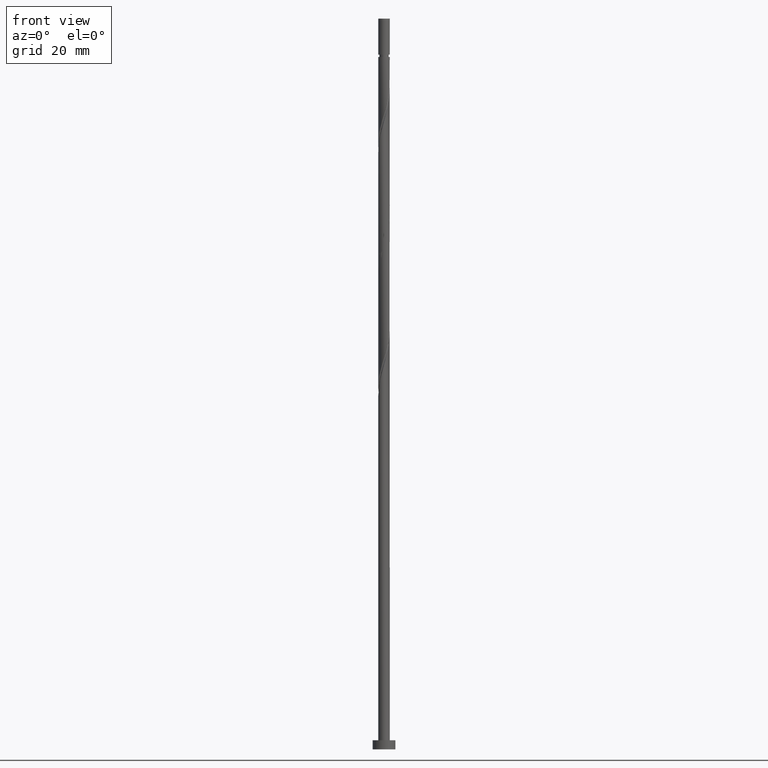
[diagram: clean part render]
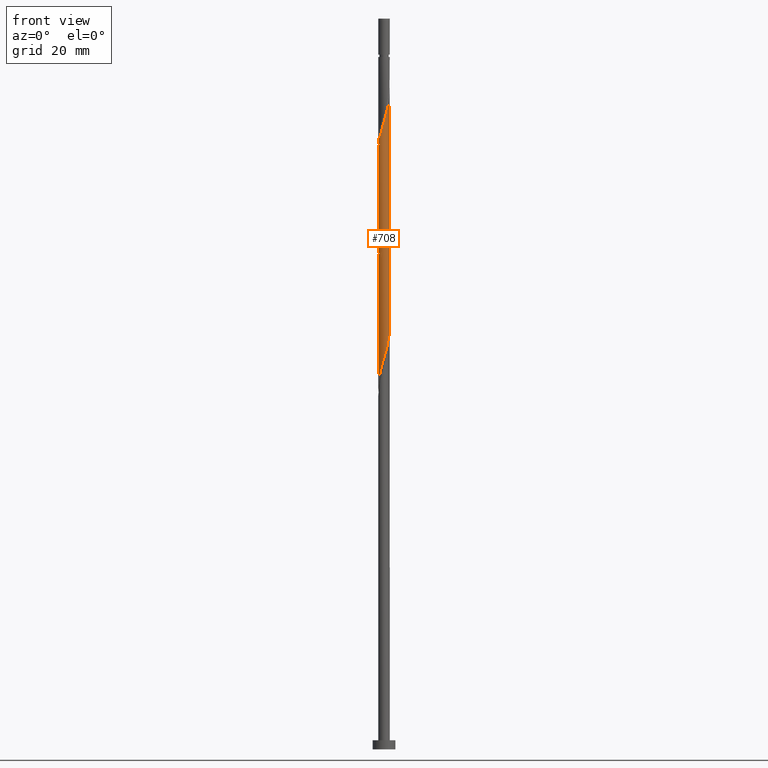
[diagram: same view with one face highlighted and labeled with its STEP entity id]
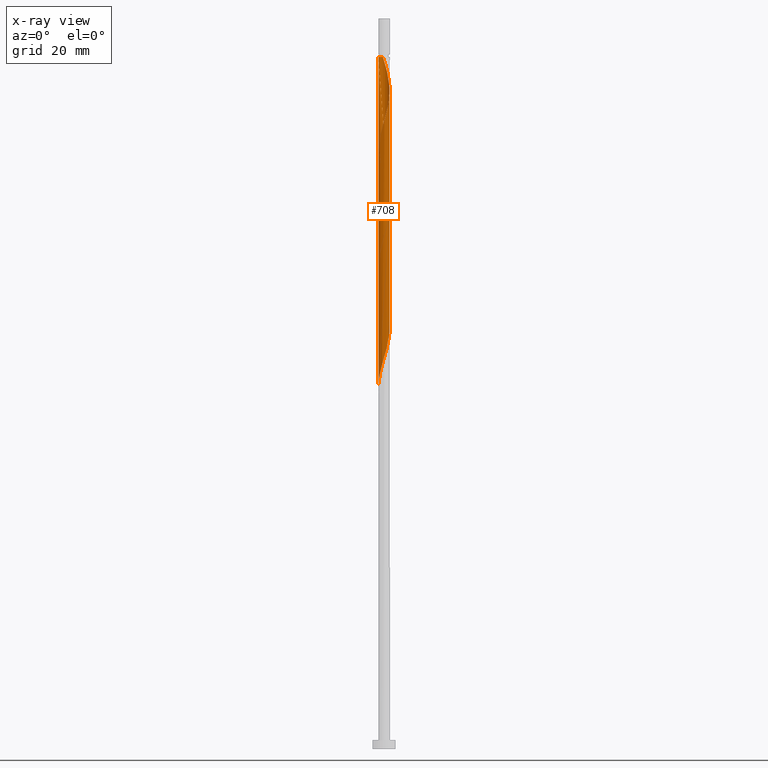
[diagram: x-ray of the same camera — body ghosted, the highlighted face saturated]
A machine part, front view. The second image highlights one B-rep face of the part: STEP entity #708.
The next image is the same camera in x-ray: the body ghosted, the highlighted face saturated — about 0% of this face is hidden behind the body in this view.
In plain terms, the highlighted cylindrical surface (bore or boss wall) has radius 1.25 mm, axis along (-0, -0, -1).
Its self-contained STEP definition (entity closure, byte-faithful):
#15 = CARTESIAN_POINT ( 'NONE',  ( -0.6205301684468541579, 1.099883002481392591, 101.3084888418696607 ) ) ;
#22 = CARTESIAN_POINT ( 'NONE',  ( -1.088687779416461110, -0.6142140660626828064, 107.9751555085362753 ) ) ;
#31 = CARTESIAN_POINT ( 'NONE',  ( -1.177130897255197484, 0.4205506517973472413, 104.3387918721726209 ) ) ;
#32 = CARTESIAN_POINT ( 'NONE',  ( -0.4530258272359607985, -1.165018283057042359, 135.8539433873241933 ) ) ;
#44 = CARTESIAN_POINT ( 'NONE',  ( 0.6205301684468541579, -1.099883002481392813, 87.97515550853628952 ) ) ;
#45 = CARTESIAN_POINT ( 'NONE',  ( -0.2487468592766935160, 1.225000000000378453, 151.6115191448999155 ) ) ;
#47 = VECTOR ( 'NONE', #468, 1000.000000000000000 ) ;
#53 = VERTEX_POINT ( 'NONE', #910 ) ;
#55 = CARTESIAN_POINT ( 'NONE',  ( 0.7427112222102564276, -1.021362007078349787, 140.0963676297483858 ) ) ;
#66 = CARTESIAN_POINT ( 'NONE',  ( 0.07261844913281340075, -1.260764399063406538, 137.6721252055059495 ) ) ;
#73 = DIRECTION ( 'NONE',  ( -0.000000000000000000, -0.000000000000000000, -1.000000000000000000 ) ) ;
#77 = CARTESIAN_POINT ( 'NONE',  ( 0.8715441755302542060, 0.8960528723793531602, 122.5206100539908078 ) ) ;
#132 = VERTEX_POINT ( 'NONE', #449 ) ;
#133 = CARTESIAN_POINT ( 'NONE',  ( 1.177130897255197484, -0.4205506517973472969, 117.6721252055059779 ) ) ;
#138 = CARTESIAN_POINT ( 'NONE',  ( 0.4530258272359594662, -1.165018283057040582, 114.0357615691423376 ) ) ;
#139 = EDGE_CURVE ( 'NONE', #150, #53, #740, .T. ) ;
#150 = VERTEX_POINT ( 'NONE', #915 ) ;
#151 = CARTESIAN_POINT ( 'NONE',  ( 0.7427112222102555394, 1.021362007078348677, 96.46000399338478815 ) ) ;
#152 = CARTESIAN_POINT ( 'NONE',  ( 1.217632374089876901, -0.2826152889853174033, 143.1266706600514453 ) ) ;
#169 = CARTESIAN_POINT ( 'NONE',  ( 1.177130897255197484, -0.4205506517973472969, 91.00545853883930647 ) ) ;
#170 = CARTESIAN_POINT ( 'NONE',  ( -1.116664842001303004, -0.5897965240134723786, 132.8236403570211337 ) ) ;
#185 = CARTESIAN_POINT ( 'NONE',  ( 1.258266318197080347, 0.1075461835256248805, 92.82364035702116212 ) ) ;
#200 = CARTESIAN_POINT ( 'NONE',  ( -0.1064515184461258396, 1.245458981348045668, 126.1569736903544765 ) ) ;
#202 = EDGE_CURVE ( 'NONE', #605, #1337, #1392, .T. ) ;
#216 = LINE ( 'NONE', #597, #47 ) ;
#222 = CARTESIAN_POINT ( 'NONE',  ( -1.250000000000000000, -1.634032661856966110E-15, 79.12764029086747541 ) ) ;
#223 = ORIENTED_EDGE ( 'NONE', *, *, #139, .T. ) ;
#230 = CARTESIAN_POINT ( 'NONE',  ( 1.116664842001301006, -0.5897965240134720455, 117.0660645994454399 ) ) ;
#234 = CARTESIAN_POINT ( 'NONE',  ( -1.250000000000000000, 0.000000000000000000, 160.0000000000000000 ) ) ;
#244 = CARTESIAN_POINT ( 'NONE',  ( -0.4248752694204982472, -1.189235600936594972, 111.0054585388393491 ) ) ;
#251 = CARTESIAN_POINT ( 'NONE',  ( 0.4248752694204984137, 1.189235600936594528, 97.67212520550602051 ) ) ;
#259 = CARTESIAN_POINT ( 'NONE',  ( 0.5837932458153768378, 1.105298804007470936, 97.06606459944536880 ) ) ;
#299 = EDGE_CURVE ( 'NONE', #863, #132, #1534, .T. ) ;
#301 = CARTESIAN_POINT ( 'NONE',  ( -0.7628986777514721318, -0.9901947321032666949, 134.6418221752029467 ) ) ;
#304 = CARTESIAN_POINT ( 'NONE',  ( -1.247931635353087598, 0.07187929802779884081, 132.2175797509605388 ) ) ;
#306 = AXIS2_PLACEMENT_3D ( 'NONE', #684, #1358, #1252 ) ;
#313 = CARTESIAN_POINT ( 'NONE',  ( 0.4248752694204984137, 1.189235600936594528, 124.3387918721726635 ) ) ;
#318 = CARTESIAN_POINT ( 'NONE',  ( -0.2487468592766560183, -1.224999999999999645, 84.94485247823325835 ) ) ;
#323 = CARTESIAN_POINT ( 'NONE',  ( 1.250000000000000222, 0.1431611592314000758, 119.6136002438387749 ) ) ;
#352 = DIRECTION ( 'NONE',  ( -0.000000000000000000, -0.000000000000000000, -1.000000000000000000 ) ) ;
#355 = CARTESIAN_POINT ( 'NONE',  ( -0.4530258272359594662, 1.165018283057040582, 100.7024282358090375 ) ) ;
#369 = CARTESIAN_POINT ( 'NONE',  ( 0.2855214860250654962, -1.230153563632688352, 113.4297009630817854 ) ) ;
#377 = CARTESIAN_POINT ( 'NONE',  ( -0.1064515184461258396, 1.245458981348045668, 99.49030702368779089 ) ) ;
#381 =( BOUNDED_CURVE ( )  B_SPLINE_CURVE ( 2, ( #1038, #912, #304, #1272, #1380, #801, #1500, #793, #906, #1256, #1024, #679, #200, #570, #1030, #313, #1163, #1148, #77, #446, #578, #688, #1389, #323, #438 ),
 .UNSPECIFIED., .F., .T. ) 
 B_SPLINE_CURVE_WITH_KNOTS ( ( 3, 2, 2, 2, 2, 2, 2, 2, 2, 2, 2, 2, 3 ),
 ( 0.4295252162417514952, 0.4318181818181818232, 0.4431818181818181768, 0.4545454545454545303, 0.4659090909090908839, 0.4772727272727272929, 0.4886363636363636465, 0.5000000000000000000, 0.5113636363636363535, 0.5227272727272727071, 0.5340909090909090606, 0.5454545454545454142, 0.5545252162417514397 ),
 .UNSPECIFIED. ) 
 CURVE ( )  GEOMETRIC_REPRESENTATION_ITEM ( )  RATIONAL_B_SPLINE_CURVE ( ( 0.9061101570135702277, 0.9072237824201524470, 0.9090909090909298218, 0.8998376744372318381, 0.9090909090909298218, 0.8998376744372318381, 0.9090909090909298218, 0.8998376744372318381, 0.9090909090909298218, 0.8998376744372318381, 0.9090909090909298218, 0.8998376744372318381, 0.9090909090909298218, 0.8998376744372318381, 0.9090909090909298218, 0.8998376744372318381, 0.9090909090909298218, 0.8998376744372318381, 0.9090909090909298218, 0.8998376744372318381, 0.9090909090909298218, 0.8998376744372318381, 0.9090909090909298218, 0.9017048011080093239, 0.9061101570135702277 ) ) 
 REPRESENTATION_ITEM ( '' )  );
#384 = CARTESIAN_POINT ( 'NONE',  ( 0.1064515184461255065, -1.245458981348046112, 112.8236403570211195 ) ) ;
#394 = CARTESIAN_POINT ( 'NONE',  ( 1.176998429982670791, 0.4576843944450075252, 94.03576156914236606 ) ) ;
#397 = CARTESIAN_POINT ( 'NONE',  ( 0.7628986777514719098, 0.9901947321032669169, 147.9751555085363179 ) ) ;
#406 = CARTESIAN_POINT ( 'NONE',  ( 0.2855214860250654962, -1.230153563632688352, 86.76303429641507137 ) ) ;
#407 = CARTESIAN_POINT ( 'NONE',  ( 0.2487468592766559072, -1.225000000000001643, 138.2781858115666296 ) ) ;
#426 = CARTESIAN_POINT ( 'NONE',  ( 0.8715441755302556492, -0.8960528723793547146, 140.7024282358090659 ) ) ;
#435 = CARTESIAN_POINT ( 'NONE',  ( -0.2855214860250658293, -1.230153563632689906, 136.4600039933847597 ) ) ;
#438 = CARTESIAN_POINT ( 'NONE',  ( 1.250000000000000000, 1.357331478842285129E-15, 119.1276402908674612 ) ) ;
#446 = CARTESIAN_POINT ( 'NONE',  ( 1.000377128850253428, 0.7707437376803578655, 121.9145494479302272 ) ) ;
#449 = CARTESIAN_POINT ( 'NONE',  ( -1.250000000000000000, -1.634032661856966110E-15, 79.12764029086747541 ) ) ;
#450 = CARTESIAN_POINT ( 'NONE',  ( -1.088687779416461110, -0.6142140660626828064, 81.30848884186961811 ) ) ;
#462 = ORIENTED_EDGE ( 'NONE', *, *, #1541, .F. ) ;
#468 = DIRECTION ( 'NONE',  ( -0.000000000000000000, -0.000000000000000000, -1.000000000000000000 ) ) ;
#473 = CARTESIAN_POINT ( 'NONE',  ( -1.217632374089875347, -0.2826152889853165151, 80.09636762974841417 ) ) ;
#488 = VECTOR ( 'NONE', #73, 1000.000000000000000 ) ;
#489 = CARTESIAN_POINT ( 'NONE',  ( -0.5837932458153767268, -1.105298804007471158, 110.3993979327787116 ) ) ;
#497 = CARTESIAN_POINT ( 'NONE',  ( 1.250000000000000000, 1.357331478842285129E-15, 119.1276402908674612 ) ) ;
#514 = CARTESIAN_POINT ( 'NONE',  ( -1.258266318197080347, -0.1075461835256253385, 106.1569736903544765 ) ) ;
#522 = CARTESIAN_POINT ( 'NONE',  ( 0.9052671870560883294, -0.8805064617251381343, 115.8539433873241791 ) ) ;
#523 = CARTESIAN_POINT ( 'NONE',  ( -0.1064515184461262004, -1.245458981348048333, 137.0660645994453830 ) ) ;
#532 = CARTESIAN_POINT ( 'NONE',  ( -1.010966014528696055, -0.7351514928693059225, 133.4297009630817570 ) ) ;
#534 = DIRECTION ( 'NONE',  ( -0.000000000000000000, -0.000000000000000000, -1.000000000000000000 ) ) ;
#550 = CARTESIAN_POINT ( 'NONE',  ( -1.177130897255199482, -0.4205506517973475189, 132.2175797509605673 ) ) ;
#558 =( BOUNDED_CURVE ( )  B_SPLINE_CURVE ( 2, ( #497, #966, #633, #1079, #133, #230, #833, #522, #754, #1194, #138, #369, #384, #1097, #1088, #244, #489, #953, #1316, #626, #22, #1201, #1212, #514, #735, #974, #31, #1446, #958, #1434, #981, #15, #355, #864, #377, #1330, #857, #251, #259, #151, #1106, #789, #1253, #394, #1260, #185, #872, #675, #169, #1375, #1338, #657, #1003, #44, #993, #406, #1476, #1349, #318, #596, #1269, #1290, #1028, #1527, #450, #1055, #473, #1284, #222 ),
 .UNSPECIFIED., .F., .T. ) 
 B_SPLINE_CURVE_WITH_KNOTS ( ( 3, 2, 2, 2, 2, 2, 2, 2, 2, 2, 2, 2, 2, 2, 2, 2, 2, 2, 2, 2, 2, 2, 2, 2, 2, 2, 2, 2, 2, 2, 2, 2, 2, 2, 3 ),
 ( 0.5545252162417514397, 0.5568181818181817677, 0.5681818181818182323, 0.5795454545454545858, 0.5909090909090909394, 0.6022727272727272929, 0.6136363636363636465, 0.6250000000000000000, 0.6363636363636363535, 0.6477272727272727071, 0.6590909090909090606, 0.6704545454545454142, 0.6818181818181817677, 0.6931818181818182323, 0.7045454545454545858, 0.7159090909090909394, 0.7272727272727272929, 0.7386363636363636465, 0.7500000000000000000, 0.7613636363636363535, 0.7727272727272727071, 0.7840909090909090606, 0.7954545454545454142, 0.8068181818181817677, 0.8181818181818182323, 0.8295454545454545858, 0.8409090909090909394, 0.8522727272727272929, 0.8636363636363636465, 0.8750000000000000000, 0.8863636363636363535, 0.8977272727272727071, 0.9090909090909090606, 0.9204545454545454142, 0.9295252162417512176 ),
 .UNSPECIFIED. ) 
 CURVE ( )  GEOMETRIC_REPRESENTATION_ITEM ( )  RATIONAL_B_SPLINE_CURVE ( ( 0.9061101570135702277, 0.9072237824201524470, 0.9090909090909298218, 0.8998376744372318381, 0.9090909090909298218, 0.8998376744372318381, 0.9090909090909298218, 0.8998376744372318381, 0.9090909090909298218, 0.8998376744372318381, 0.9090909090909298218, 0.8998376744372318381, 0.9090909090909298218, 0.8998376744372318381, 0.9090909090909298218, 0.8998376744372318381, 0.9090909090909298218, 0.8998376744372318381, 0.9090909090909298218, 0.8998376744372318381, 0.9090909090909298218, 0.8998376744372318381, 0.9090909090909298218, 0.8998376744372318381, 0.9090909090909298218, 0.8998376744372318381, 0.9090909090909298218, 0.8998376744372318381, 0.9090909090909298218, 0.8998376744372318381, 0.9090909090909298218, 0.8998376744372318381, 0.9090909090909298218, 0.8998376744372318381, 0.9090909090909298218, 0.8998376744372318381, 0.9090909090909298218, 0.8998376744372318381, 0.9090909090909298218, 0.8998376744372318381, 0.9090909090909298218, 0.8998376744372318381, 0.9090909090909298218, 0.8998376744372318381, 0.9090909090909298218, 0.8998376744372318381, 0.9090909090909298218, 0.8998376744372318381, 0.9090909090909298218, 0.8998376744372318381, 0.9090909090909298218, 0.8998376744372318381, 0.9090909090909298218, 0.8998376744372318381, 0.9090909090909298218, 0.8998376744372318381, 0.9090909090909298218, 0.8998376744372318381, 0.9090909090909298218, 0.8998376744372318381, 0.9090909090909298218, 0.8998376744372318381, 0.9090909090909298218, 0.8998376744372318381, 0.9090909090909298218, 0.8998376744372318381, 0.9090909090909298218, 0.9017048011080095460, 0.9061101570135700056 ) ) 
 REPRESENTATION_ITEM ( '' )  );
#559 = CARTESIAN_POINT ( 'NONE',  ( -0.6205301684468550460, -1.099883002481394145, 135.2478827812635416 ) ) ;
#570 = CARTESIAN_POINT ( 'NONE',  ( 0.07261844913281356728, 1.260764399063405428, 125.5509130842938958 ) ) ;
#578 = CARTESIAN_POINT ( 'NONE',  ( 1.088687779416461110, 0.6142140660626831394, 121.3084888418696181 ) ) ;
#596 = CARTESIAN_POINT ( 'NONE',  ( -0.4248752694204982472, -1.189235600936594972, 84.33879187217264928 ) ) ;
#597 = CARTESIAN_POINT ( 'NONE',  ( -1.250000000000000000, 0.000000000000000000, 160.0000000000000000 ) ) ;
#598 = ORIENTED_EDGE ( 'NONE', *, *, #1080, .F. ) ;
#605 = VERTEX_POINT ( 'NONE', #782 ) ;
#606 = AXIS2_PLACEMENT_3D ( 'NONE', #1123, #534, #1237 ) ;
#626 = CARTESIAN_POINT ( 'NONE',  ( -1.000377128850253872, -0.7707437376803574214, 108.5812161145968986 ) ) ;
#633 = CARTESIAN_POINT ( 'NONE',  ( 1.247931635353087598, -0.07187929802779900734, 118.8842464176271818 ) ) ;
#640 = CARTESIAN_POINT ( 'NONE',  ( -1.247931635353088931, -0.07187929802779864652, 131.0054585388393207 ) ) ;
#648 = CARTESIAN_POINT ( 'NONE',  ( 0.2855214860250660514, 1.230153563632689906, 149.7933373267181025 ) ) ;
#657 = CARTESIAN_POINT ( 'NONE',  ( 0.9052671870560883294, -0.8805064617251381343, 89.18727672065750767 ) ) ;
#658 = CARTESIAN_POINT ( 'NONE',  ( -1.250000000000001554, 2.206131053765682578E-16, 130.7620646655990413 ) ) ;
#660 = CYLINDRICAL_SURFACE ( 'NONE', #606, 1.250000000000000000 ) ;
#675 = CARTESIAN_POINT ( 'NONE',  ( 1.237596952509093962, -0.2513047795812229923, 91.61151914489997239 ) ) ;
#679 = CARTESIAN_POINT ( 'NONE',  ( -0.2855214860250653852, 1.230153563632688574, 126.7630342964151140 ) ) ;
#684 = CARTESIAN_POINT ( 'NONE',  ( 0.000000000000000000, 0.000000000000000000, 151.6115191448999155 ) ) ;
#688 = CARTESIAN_POINT ( 'NONE',  ( 1.176998429982670791, 0.4576843944450075252, 120.7024282358090232 ) ) ;
#708 = ADVANCED_FACE ( 'NONE', ( #1247 ), #660, .T. ) ;
#735 = CARTESIAN_POINT ( 'NONE',  ( -1.247931635353087598, 0.07187929802779884081, 105.5509130842938532 ) ) ;
#740 = CIRCLE ( 'NONE', #306, 1.249999999999993561 ) ;
#754 = CARTESIAN_POINT ( 'NONE',  ( 0.7628986777514707995, -0.9901947321032651406, 115.2478827812635700 ) ) ;
#756 = CARTESIAN_POINT ( 'NONE',  ( 1.010966014528696499, 0.7351514928693054785, 146.7630342964151282 ) ) ;
#782 = CARTESIAN_POINT ( 'NONE',  ( 1.250000000000000000, 1.530808498934191571E-16, 151.6115191448999155 ) ) ;
#789 = CARTESIAN_POINT ( 'NONE',  ( 1.000377128850253428, 0.7707437376803578655, 95.24788278126359842 ) ) ;
#790 = CARTESIAN_POINT ( 'NONE',  ( 1.116664842001303004, 0.5897965240134721565, 146.1569736903544765 ) ) ;
#793 = CARTESIAN_POINT ( 'NONE',  ( -0.9052671870560881073, 0.8805064617251381343, 129.1872767206575361 ) ) ;
#801 = CARTESIAN_POINT ( 'NONE',  ( -1.116664842001301006, 0.5897965240134721565, 130.3993979327787542 ) ) ;
#833 = CARTESIAN_POINT ( 'NONE',  ( 1.010966014528694723, -0.7351514928693047013, 116.4600039933847455 ) ) ;
#854 = EDGE_CURVE ( 'NONE', #1433, #1337, #381, .T. ) ;
#857 = CARTESIAN_POINT ( 'NONE',  ( 0.2487468592766561570, 1.224999999999999645, 98.27818581156660116 ) ) ;
#863 = VERTEX_POINT ( 'NONE', #1492 ) ;
#864 = CARTESIAN_POINT ( 'NONE',  ( -0.2855214860250653852, 1.230153563632688574, 100.0963676297484284 ) ) ;
#872 = CARTESIAN_POINT ( 'NONE',  ( 1.247931635353087598, -0.07187929802779900734, 92.21757975096053883 ) ) ;
#873 = CARTESIAN_POINT ( 'NONE',  ( 0.4530258272359601879, 1.165018283057042581, 149.1872767206574792 ) ) ;
#880 = CARTESIAN_POINT ( 'NONE',  ( 0.9052671870560901057, 0.8805064617251386894, 147.3690949024756378 ) ) ;
#897 = CARTESIAN_POINT ( 'NONE',  ( 1.000377128850254982, -0.7707437376803588647, 141.3084888418696323 ) ) ;
#904 = CARTESIAN_POINT ( 'NONE',  ( 0.5837932458153772819, -1.105298804007473601, 139.4903070236878193 ) ) ;
#906 = CARTESIAN_POINT ( 'NONE',  ( -0.7628986777514707995, 0.9901947321032651406, 128.5812161145968844 ) ) ;
#910 = CARTESIAN_POINT ( 'NONE',  ( -0.2487468592766935160, 1.225000000000378453, 151.6115191448999155 ) ) ;
#912 = CARTESIAN_POINT ( 'NONE',  ( -1.250000000000000000, 0.03596940815478116837, 132.3388756194825930 ) ) ;
#915 = CARTESIAN_POINT ( 'NONE',  ( -1.249999999999993561, 0.000000000000000000, 151.6115191448999155 ) ) ;
#946 = ORIENTED_EDGE ( 'NONE', *, *, #1291, .F. ) ;
#953 = CARTESIAN_POINT ( 'NONE',  ( -0.7427112222102552064, -1.021362007078349343, 109.7933373267181310 ) ) ;
#958 = CARTESIAN_POINT ( 'NONE',  ( -1.010966014528694501, 0.7351514928693047013, 103.1266706600514311 ) ) ;
#966 = CARTESIAN_POINT ( 'NONE',  ( 1.250000000000000000, -0.03596940815478140430, 119.0055422861492644 ) ) ;
#974 = CARTESIAN_POINT ( 'NONE',  ( -1.237596952509093962, 0.2513047795812228258, 104.9448524782332726 ) ) ;
#981 = CARTESIAN_POINT ( 'NONE',  ( -0.7628986777514707995, 0.9901947321032651406, 101.9145494479302130 ) ) ;
#993 = CARTESIAN_POINT ( 'NONE',  ( 0.4530258272359594662, -1.165018283057040582, 87.36909490247566623 ) ) ;
#1003 = CARTESIAN_POINT ( 'NONE',  ( 0.7628986777514707995, -0.9901947321032651406, 88.58121611459689859 ) ) ;
#1004 = CARTESIAN_POINT ( 'NONE',  ( 1.088687779416463108, -0.6142140660626842497, 141.9145494479302272 ) ) ;
#1024 = CARTESIAN_POINT ( 'NONE',  ( -0.4530258272359594662, 1.165018283057040582, 127.3690949024756947 ) ) ;
#1028 = CARTESIAN_POINT ( 'NONE',  ( -0.8715441755302544280, -0.8960528723793527162, 82.52061005399082205 ) ) ;
#1030 = CARTESIAN_POINT ( 'NONE',  ( 0.2487468592766561570, 1.224999999999999645, 124.9448524782332584 ) ) ;
#1038 = CARTESIAN_POINT ( 'NONE',  ( -1.250000000000000000, 1.084369501003478525E-16, 132.4609736242008182 ) ) ;
#1055 = CARTESIAN_POINT ( 'NONE',  ( -1.176998429982670125, -0.4576843944450082469, 80.70242823580903746 ) ) ;
#1069 = EDGE_LOOP ( 'NONE', ( #946, #223, #598, #1407, #462, #1200, #1504, #1497 ) ) ;
#1074 = VECTOR ( 'NONE', #352, 1000.000000000000000 ) ;
#1079 = CARTESIAN_POINT ( 'NONE',  ( 1.237596952509093962, -0.2513047795812229923, 118.2781858115666296 ) ) ;
#1080 = EDGE_CURVE ( 'NONE', #863, #53, #1137, .T. ) ;
#1088 = CARTESIAN_POINT ( 'NONE',  ( -0.2487468592766560183, -1.224999999999999645, 111.6115191448999013 ) ) ;
#1097 = CARTESIAN_POINT ( 'NONE',  ( -0.07261844913281388647, -1.260764399063405872, 112.2175797509605246 ) ) ;
#1106 = CARTESIAN_POINT ( 'NONE',  ( 0.8715441755302542060, 0.8960528723793531602, 95.85394338732416486 ) ) ;
#1107 = CARTESIAN_POINT ( 'NONE',  ( -0.9052671870560894396, -0.8805064617251390224, 134.0357615691423234 ) ) ;
#1120 = CARTESIAN_POINT ( 'NONE',  ( -0.07261844913281328973, 1.260764399063406760, 151.0054585388392638 ) ) ;
#1123 = CARTESIAN_POINT ( 'NONE',  ( 0.000000000000000000, 0.000000000000000000, 160.0000000000000000 ) ) ;
#1137 =( BOUNDED_CURVE ( )  B_SPLINE_CURVE ( 2, ( #658, #1224, #640, #1234, #550, #170, #532, #1107, #301, #559, #32, #435, #523, #66, #407, #1485, #904, #55, #426, #897, #1004, #1464, #152, #1369, #1454, #1145, #1377, #790, #756, #880, #397, #1255, #873, #648, #1477, #1120, #45 ),
 .UNSPECIFIED., .F., .T. ) 
 B_SPLINE_CURVE_WITH_KNOTS ( ( 3, 2, 2, 2, 2, 2, 2, 2, 2, 2, 2, 2, 2, 2, 2, 2, 2, 2, 3 ),
 ( 0.5545252162417512176, 0.5568181818181818787, 0.5681818181818181213, 0.5795454545454545858, 0.5909090909090908283, 0.6022727272727272929, 0.6136363636363636465, 0.6250000000000000000, 0.6363636363636363535, 0.6477272727272727071, 0.6590909090909091717, 0.6704545454545454142, 0.6818181818181818787, 0.6931818181818181213, 0.7045454545454545858, 0.7159090909090908283, 0.7272727272727272929, 0.7386363636363636465, 0.7500000000000000000 ),
 .UNSPECIFIED. ) 
 CURVE ( )  GEOMETRIC_REPRESENTATION_ITEM ( )  RATIONAL_B_SPLINE_CURVE ( ( 0.9061101570135761119, 0.9072237824201582201, 0.9090909090909358170, 0.8998376744372380553, 0.9090909090909358170, 0.8998376744372380553, 0.9090909090909358170, 0.8998376744372380553, 0.9090909090909358170, 0.8998376744372380553, 0.9090909090909358170, 0.8998376744372380553, 0.9090909090909358170, 0.8998376744372380553, 0.9090909090909358170, 0.8998376744372380553, 0.9090909090909358170, 0.8998376744372380553, 0.9090909090909358170, 0.8998376744372380553, 0.9090909090909358170, 0.8998376744372380553, 0.9090909090909358170, 0.8998376744372380553, 0.9090909090909358170, 0.8998376744372380553, 0.9090909090909358170, 0.8998376744372380553, 0.9090909090909358170, 0.8998376744372380553, 0.9090909090909358170, 0.8998376744372380553, 0.9090909090909358170, 0.8998376744372380553, 0.9090909090909358170, 0.8998376744372380553, 0.9090909090909358170 ) ) 
 REPRESENTATION_ITEM ( '' )  );
#1144 = CARTESIAN_POINT ( 'NONE',  ( 1.250000000000000000, 1.530808498934191571E-16, 160.0000000000000000 ) ) ;
#1145 = CARTESIAN_POINT ( 'NONE',  ( 1.237596952509095960, 0.2513047795812227148, 144.9448524782332584 ) ) ;
#1148 = CARTESIAN_POINT ( 'NONE',  ( 0.7427112222102555394, 1.021362007078348677, 123.1266706600514311 ) ) ;
#1163 = CARTESIAN_POINT ( 'NONE',  ( 0.5837932458153768378, 1.105298804007470936, 123.7327312661120686 ) ) ;
#1194 = CARTESIAN_POINT ( 'NONE',  ( 0.6205301684468541579, -1.099883002481392813, 114.6418221752030036 ) ) ;
#1200 = ORIENTED_EDGE ( 'NONE', *, *, #202, .F. ) ;
#1201 = CARTESIAN_POINT ( 'NONE',  ( -1.176998429982670125, -0.4576843944450082469, 107.3690949024757089 ) ) ;
#1212 = CARTESIAN_POINT ( 'NONE',  ( -1.217632374089875347, -0.2826152889853165151, 106.7630342964150429 ) ) ;
#1224 = CARTESIAN_POINT ( 'NONE',  ( -1.250000000000001776, -0.03596940815477602665, 130.8841626703172665 ) ) ;
#1234 = CARTESIAN_POINT ( 'NONE',  ( -1.237596952509095960, -0.2513047795812228258, 131.6115191448999440 ) ) ;
#1237 = DIRECTION ( 'NONE',  ( -1.000000000000000000, 0.000000000000000000, 0.000000000000000000 ) ) ;
#1247 = FACE_OUTER_BOUND ( 'NONE', #1069, .T. ) ;
#1252 = DIRECTION ( 'NONE',  ( -1.000000000000000000, 0.000000000000000000, 0.000000000000000000 ) ) ;
#1253 = CARTESIAN_POINT ( 'NONE',  ( 1.088687779416461110, 0.6142140660626831394, 94.64182217520294671 ) ) ;
#1255 = CARTESIAN_POINT ( 'NONE',  ( 0.6205301684468547130, 1.099883002481394367, 148.5812161145968560 ) ) ;
#1256 = CARTESIAN_POINT ( 'NONE',  ( -0.6205301684468541579, 1.099883002481392591, 127.9751555085362895 ) ) ;
#1260 = CARTESIAN_POINT ( 'NONE',  ( 1.217632374089875569, 0.2826152889853161820, 93.42970096308174277 ) ) ;
#1269 = CARTESIAN_POINT ( 'NONE',  ( -0.5837932458153767268, -1.105298804007471158, 83.73273126611205441 ) ) ;
#1272 = CARTESIAN_POINT ( 'NONE',  ( -1.237596952509093962, 0.2513047795812228258, 131.6115191448999724 ) ) ;
#1284 = CARTESIAN_POINT ( 'NONE',  ( -1.249999999999999334, -0.1431611592314039338, 79.61360024383878908 ) ) ;
#1290 = CARTESIAN_POINT ( 'NONE',  ( -0.7427112222102552064, -1.021362007078349343, 83.12667066005144534 ) ) ;
#1291 = EDGE_CURVE ( 'NONE', #150, #1433, #216, .T. ) ;
#1316 = CARTESIAN_POINT ( 'NONE',  ( -0.8715441755302544280, -0.8960528723793527162, 109.1872767206574935 ) ) ;
#1330 = CARTESIAN_POINT ( 'NONE',  ( 0.07261844913281356728, 1.260764399063405428, 98.88424641762722445 ) ) ;
#1337 = VERTEX_POINT ( 'NONE', #1528 ) ;
#1338 = CARTESIAN_POINT ( 'NONE',  ( 1.010966014528694723, -0.7351514928693047013, 89.79333732671810253 ) ) ;
#1349 = CARTESIAN_POINT ( 'NONE',  ( -0.07261844913281388647, -1.260764399063405872, 85.55091308429385322 ) ) ;
#1358 = DIRECTION ( 'NONE',  ( -0.000000000000000000, -0.000000000000000000, -1.000000000000000000 ) ) ;
#1369 = CARTESIAN_POINT ( 'NONE',  ( 1.258266318197082123, -0.1075461835256256993, 143.7327312661120970 ) ) ;
#1375 = CARTESIAN_POINT ( 'NONE',  ( 1.116664842001301006, -0.5897965240134720455, 90.39939793277874003 ) ) ;
#1377 = CARTESIAN_POINT ( 'NONE',  ( 1.177130897255199482, 0.4205506517973474079, 145.5509130842938248 ) ) ;
#1380 = CARTESIAN_POINT ( 'NONE',  ( -1.177130897255197484, 0.4205506517973472413, 131.0054585388392923 ) ) ;
#1389 = CARTESIAN_POINT ( 'NONE',  ( 1.217632374089875569, 0.2826152889853161820, 120.0963676297484000 ) ) ;
#1390 = CARTESIAN_POINT ( 'NONE',  ( -1.250000000000000000, 1.084369501003478525E-16, 132.4609736242008182 ) ) ;
#1392 = LINE ( 'NONE', #1144, #488 ) ;
#1407 = ORIENTED_EDGE ( 'NONE', *, *, #299, .T. ) ;
#1433 = VERTEX_POINT ( 'NONE', #1390 ) ;
#1434 = CARTESIAN_POINT ( 'NONE',  ( -0.9052671870560881073, 0.8805064617251381343, 102.5206100539908505 ) ) ;
#1446 = CARTESIAN_POINT ( 'NONE',  ( -1.116664842001301006, 0.5897965240134721565, 103.7327312661120544 ) ) ;
#1454 = CARTESIAN_POINT ( 'NONE',  ( 1.247931635353088931, 0.07187929802779849386, 144.3387918721726919 ) ) ;
#1464 = CARTESIAN_POINT ( 'NONE',  ( 1.176998429982672123, -0.4576843944450087465, 142.5206100539907936 ) ) ;
#1476 = CARTESIAN_POINT ( 'NONE',  ( 0.1064515184461255065, -1.245458981348046112, 86.15697369035446229 ) ) ;
#1477 = CARTESIAN_POINT ( 'NONE',  ( 0.1064515184461263669, 1.245458981348048333, 150.3993979327786690 ) ) ;
#1485 = CARTESIAN_POINT ( 'NONE',  ( 0.4248752694204984137, -1.189235600936596748, 138.8842464176271960 ) ) ;
#1492 = CARTESIAN_POINT ( 'NONE',  ( -1.250000000000001554, 2.206131053765682578E-16, 130.7620646655990413 ) ) ;
#1497 = ORIENTED_EDGE ( 'NONE', *, *, #854, .F. ) ;
#1500 = CARTESIAN_POINT ( 'NONE',  ( -1.010966014528694501, 0.7351514928693047013, 129.7933373267181025 ) ) ;
#1504 = ORIENTED_EDGE ( 'NONE', *, *, #202, .T. ) ;
#1527 = CARTESIAN_POINT ( 'NONE',  ( -1.000377128850253872, -0.7707437376803574214, 81.91454944793022719 ) ) ;
#1528 = CARTESIAN_POINT ( 'NONE',  ( 1.250000000000000000, 1.357331478842285129E-15, 119.1276402908674754 ) ) ;
#1534 = LINE ( 'NONE', #234, #1074 ) ;
#1541 = EDGE_CURVE ( 'NONE', #1337, #132, #558, .T. ) ;